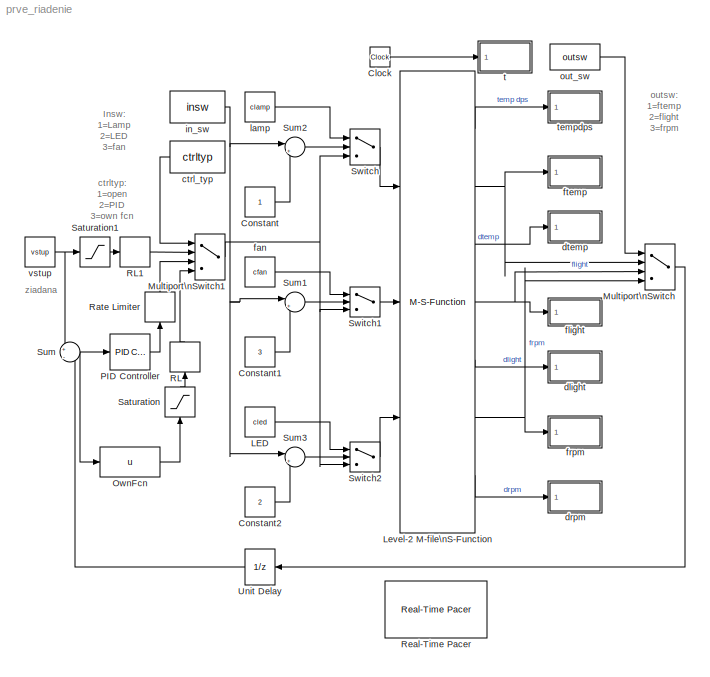
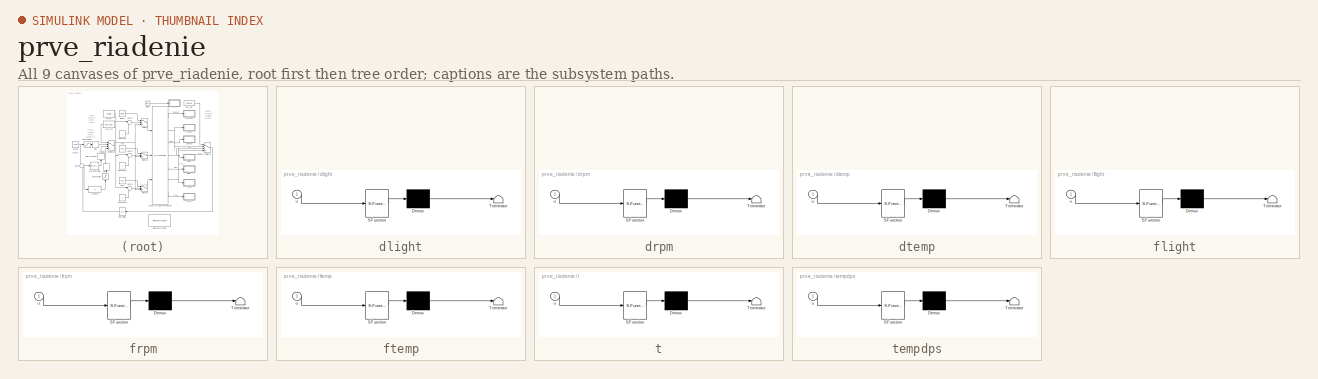
[diagram: thumbnail index - all 9 canvases of the model, root first then tree order]
MODEL prve_riadenie
KIND model
BLOCK [Clock] Clock
  Decimation = 10
  SID = 33
BLOCK [Constant] Constant
  OutDataType = fixdt(1, 16)
  OutScaling = 2^0
  SID = 80
  SampleTime = Ts
BLOCK [Constant] Constant1
  OutDataType = fixdt(1, 16)
  OutScaling = 2^0
  SID = 81
  SampleTime = Ts
  Value = 3
BLOCK [Constant] Constant2
  OutDataType = fixdt(1, 16)
  OutScaling = 2^0
  SID = 82
  SampleTime = Ts
  Value = 2
BLOCK [Constant] LED
  SID = 63
  SampleTime = Ts
  Value = cled
BLOCK [M-S-Function] Level-2 M-file\nS-Function
  FunctionName = tos10
  Parameters = Ts,com,baud,fTt,fTl,fTf
  Ports = [3, 7]
  SID = 45
BLOCK [MultiPortSwitch] Multiport\nSwitch
  InputSameDT = off
  OutDataType = fixdt(1, 16)
  OutDataTypeMode = double
  OutDataTypeStr = double
  OutScaling = 2^0
  Ports = [4, 1]
  SID = 71
  SampleTime = Ts
  SaturateOnIntegerOverflow = off
BLOCK [MultiPortSwitch] Multiport\nSwitch1
  InputSameDT = off
  OutDataType = fixdt(1, 16)
  OutDataTypeMode = double
  OutDataTypeStr = double
  OutScaling = 2^0
  Ports = [4, 1]
  SID = 115
  SampleTime = Ts
  SaturateOnIntegerOverflow = off
BLOCK [Fcn] OwnFcn
  Expr = u
  SID = 114
  SampleTime = Ts
BLOCK [Reference] PID Controller  REF=simulink/Continuous/PID Controller
  AntiWindupMode = clamping
  Controller = PID
  D = D
  DOutDataTypeStr = Inherit: Inherit via internal rule
  DOutMax = []
  DOutMin = []
  DParamDataTypeStr = Inherit: Inherit via internal rule
  DParamMax = []
  DParamMin = []
  DialogController = pidpack.PIDConfig.pidDDGCreate
  DialogControllerArgs = DataTag0
  ExternalReset = none
  FilterContinuousStateAttributes = ''
  FilterMethod = Forward Euler
  FilterOutDataTypeStr = Inherit: Inherit via internal rule
  FilterOutMax = []
  FilterOutMin = []
  FilterRTWStateStorageClass = Auto
  FilterStateMustResolveToSignalObject = off
  Form = Parallel
  FunctionWithSeparateData = off
  I = I
  IOutDataTypeStr = Inherit: Inherit via internal rule
  IOutMax = []
  IOutMin = []
  IParamDataTypeStr = Inherit: Inherit via internal rule
  IParamMax = []
  IParamMin = []
  IgnoreLimit = off
  InitialConditionForFilter = 0
  InitialConditionForIntegrator = 0
  InitialConditionSource = internal
  IntegratorContinuousStateAttributes = ''
  IntegratorMethod = Forward Euler
  IntegratorOutDataTypeStr = Inherit: Inherit via internal rule
  IntegratorOutMax = []
  IntegratorOutMin = []
  IntegratorRTWStateStorageClass = Auto
  IntegratorStateMustResolveToSignalObject = off
  Kb = 10
  KbOutDataTypeStr = Inherit: Inherit via internal rule
  KbOutMax = []
  KbOutMin = []
  KbParamDataTypeStr = Inherit: Inherit via internal rule
  KbParamMax = []
  KbParamMin = []
  Kt = 1
  KtOutDataTypeStr = Inherit: Inherit via internal rule
  KtOutMax = []
  KtOutMin = []
  KtParamDataTypeStr = Inherit: Inherit via internal rule
  KtParamMax = []
  KtParamMin = []
  LimitOutput = on
  LinearizeAsGain = off
  LockScale = off
  LowerSaturationLimit = 0
  N = 10
  NOutDataTypeStr = Inherit: Inherit via internal rule
  NOutMax = []
  NOutMin = []
  NParamDataTypeStr = Inherit: Inherit via internal rule
  NParamMax = []
  NParamMin = []
  P = P
  POutDataTypeStr = Inherit: Inherit via internal rule
  POutMax = []
  POutMin = []
  PParamDataTypeStr = Inherit: Inherit via internal rule
  PParamMax = []
  PParamMin = []
  Ports = [1, 1]
  RTWMemSecDataConstants = Inherit from model
  RTWMemSecDataInternal = Inherit from model
  RTWMemSecDataParameters = Inherit from model
  RTWMemSecFuncExecute = Inherit from model
  RTWMemSecFuncInitTerm = Inherit from model
  RndMeth = Floor
  SID = 99
  SampleTime = Ts
  SaturateOnIntegerOverflow = off
  SaturationOutDataTypeStr = Inherit: Same as input
  SaturationOutMax = []
  SaturationOutMin = []
  ShowPortLabels = FromPortIcon
  SourceBlock = simulink/Continuous/PID Controller
  SourceType = PID 1dof
  SumAccumDataTypeStr = Inherit: Inherit via internal rule
  SumDAccumDataTypeStr = Inherit: Inherit via internal rule
  SumDOutDataTypeStr = Inherit: Inherit via internal rule
  SumDOutMax = []
  SumDOutMin = []
  SumI1AccumDataTypeStr = Inherit: Inherit via internal rule
  SumI1OutDataTypeStr = single
  SumI1OutMax = []
  SumI1OutMin = []
  SumI2AccumDataTypeStr = Inherit: Inherit via internal rule
  SumI2OutDataTypeStr = Inherit: Inherit via internal rule
  SumI2OutMax = []
  SumI2OutMin = []
  SumI3AccumDataTypeStr = Inherit: Inherit via internal rule
  SumI3OutDataTypeStr = Inherit: Inherit via internal rule
  SumI3OutMax = []
  SumI3OutMin = []
  SumOutDataTypeStr = Inherit: Inherit via internal rule
  SumOutMax = []
  SumOutMin = []
  SystemSampleTime = -1
  TimeDomain = Discrete-time
  TrackingMode = off
  UpperSaturationLimit = 100
  ZeroCross = on
BLOCK [RateLimiter] RL
  FallingSlewLimit = -10
  RisingSlewLimit = 10
  SID = 116
  SampleTimeMode = inherited
BLOCK [RateLimiter] RL1
  FallingSlewLimit = -10
  RisingSlewLimit = 10
  SID = 119
  SampleTimeMode = inherited
BLOCK [RateLimiter] Rate Limiter
  FallingSlewLimit = -10
  RisingSlewLimit = 10
  SID = 113
  SampleTimeMode = inherited
BLOCK [Reference] Real-Time Pacer  REF=tos_lib/Real-Time Pacer  (lib defined in mdl_b48aa653034c, slx_2f9688d23522)
  Ports = []
  SID = 59
  SourceBlock = tos_lib/Real-Time Pacer
  SourceType = RealTime_Pacer
  simTimePerRealTime = 1
BLOCK [Saturate] Saturation
  LowerLimit = 0
  OutDataType = fixdt(1, 16)
  OutScaling = 2^0
  SID = 117
  SampleTime = Ts
  UpperLimit = 100
BLOCK [Saturate] Saturation1
  LowerLimit = 0
  OutDataType = fixdt(1, 16)
  OutScaling = 2^0
  SID = 118
  SampleTime = Ts
  UpperLimit = 100
BLOCK [Sum] Sum
  IconShape = round
  InputSameDT = off
  Inputs = +|-
  OutDataType = fixdt(1, 16)
  OutDataTypeMode = Inherit via internal rule
  OutDataTypeStr = Inherit: Inherit via internal rule
  OutScaling = 2^0
  Ports = [2, 1]
  SID = 87
  SampleTime = Ts
  SaturateOnIntegerOverflow = off
BLOCK [Sum] Sum1
  IconShape = round
  InputSameDT = off
  Inputs = |+-
  OutDataType = fixdt(1, 16)
  OutDataTypeMode = Inherit via internal rule
  OutDataTypeStr = Inherit: Inherit via internal rule
  OutScaling = 2^0
  Ports = [2, 1]
  SID = 77
  SampleTime = Ts
  SaturateOnIntegerOverflow = off
BLOCK [Sum] Sum2
  IconShape = round
  InputSameDT = off
  Inputs = |+-
  OutDataType = fixdt(1, 16)
  OutDataTypeMode = Inherit via internal rule
  OutDataTypeStr = Inherit: Inherit via internal rule
  OutScaling = 2^0
  Ports = [2, 1]
  SID = 78
  SampleTime = Ts
  SaturateOnIntegerOverflow = off
BLOCK [Sum] Sum3
  IconShape = round
  InputSameDT = off
  Inputs = |+-
  OutDataType = fixdt(1, 16)
  OutDataTypeMode = Inherit via internal rule
  OutDataTypeStr = Inherit: Inherit via internal rule
  OutScaling = 2^0
  Ports = [2, 1]
  SID = 76
  SampleTime = Ts
  SaturateOnIntegerOverflow = off
BLOCK [Switch] Switch
  Criteria = u2 ~= 0
  InputSameDT = off
  OutDataType = fixdt(1, 16)
  OutDataTypeMode = double
  OutDataTypeStr = double
  OutScaling = 2^0
  SID = 73
  SaturateOnIntegerOverflow = off
BLOCK [Switch] Switch1
  Criteria = u2 ~= 0
  InputSameDT = off
  OutDataType = fixdt(1, 16)
  OutDataTypeMode = double
  OutDataTypeStr = double
  OutScaling = 2^0
  SID = 74
  SaturateOnIntegerOverflow = off
BLOCK [Switch] Switch2
  Criteria = u2 ~= 0
  InputSameDT = off
  OutDataType = fixdt(1, 16)
  OutDataTypeMode = double
  OutDataTypeStr = double
  OutScaling = 2^0
  SID = 75
  SampleTime = Ts
  SaturateOnIntegerOverflow = off
BLOCK [UnitDelay] Unit Delay
  SID = 102
  SampleTime = Ts
BLOCK [Constant] ctrl_typ
  SID = 84
  SampleTime = Ts
  Value = ctrltyp
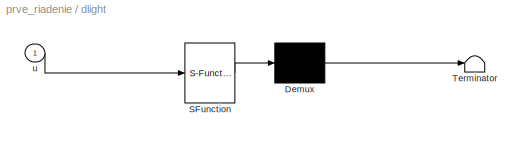
BLOCK [SubSystem] dlight
  FunctionWithSeparateData = off
  MaskDescription = Embedded MATLAB block
  MaskDisplay = disp('fcn');
  MaskHideContents = off
  MaskIconFrame = on
  MaskIconOpaque = off
  MaskIconRotate = none
  MaskIconUnits = autoscale
  MaskPortRotate = default
  MaskSelfModifiable = on
  MaskType = Stateflow
  MinAlgLoopOccurrences = off
  Opaque = off
  PermitHierarchicalResolution = ExplicitOnly
  Ports = [1]
  PropExecContextOutsideSubsystem = off
  RTWSystemCode = Auto
  RequestExecContextInheritance = off
  SID = 92
  SystemSampleTime = Ts
  TreatAsAtomicUnit = on
BLOCK [Demux] dlight/ Demux 
  Outputs = 1
  Ports = [1, 1]
  SID = 7
BLOCK [S-Function] dlight/ SFunction 
  EnableBusSupport = on
  FunctionName = sf_sfun
  PortCounts = [1 1]
  Ports = [1, 1]
  SID = 6
  Tag = Stateflow S-Function prve_riadenie 7
BLOCK [Terminator] dlight/ Terminator 
  SID = 9
BLOCK [Inport] dlight/u
  IconDisplay = Port number
  OutDataType = sfix(16)
  OutScaling = 2^0
  SID = 1
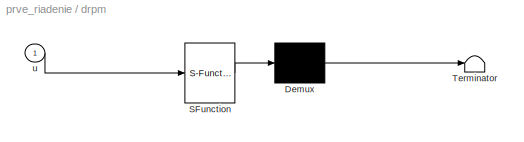
BLOCK [SubSystem] drpm
  FunctionWithSeparateData = off
  MaskDescription = Embedded MATLAB block
  MaskDisplay = disp('fcn');
  MaskHideContents = off
  MaskIconFrame = on
  MaskIconOpaque = off
  MaskIconRotate = none
  MaskIconUnits = autoscale
  MaskPortRotate = default
  MaskSelfModifiable = on
  MaskType = Stateflow
  MinAlgLoopOccurrences = off
  Opaque = off
  PermitHierarchicalResolution = ExplicitOnly
  Ports = [1]
  PropExecContextOutsideSubsystem = off
  RTWSystemCode = Auto
  RequestExecContextInheritance = off
  SID = 94
  SystemSampleTime = Ts
  TreatAsAtomicUnit = on
BLOCK [Demux] drpm/ Demux 
  Outputs = 1
  Ports = [1, 1]
  SID = 7
BLOCK [S-Function] drpm/ SFunction 
  EnableBusSupport = on
  FunctionName = sf_sfun
  PortCounts = [1 1]
  Ports = [1, 1]
  SID = 6
  Tag = Stateflow S-Function prve_riadenie 5
BLOCK [Terminator] drpm/ Terminator 
  SID = 9
BLOCK [Inport] drpm/u
  IconDisplay = Port number
  OutDataType = sfix(16)
  OutScaling = 2^0
  SID = 1
BLOCK [SubSystem] dtemp
  FunctionWithSeparateData = off
  MaskDescription = Embedded MATLAB block
  MaskDisplay = disp('fcn');
  MaskHideContents = off
  MaskIconFrame = on
  MaskIconOpaque = off
  MaskIconRotate = none
  MaskIconUnits = autoscale
  MaskPortRotate = default
  MaskSelfModifiable = on
  MaskType = Stateflow
  MinAlgLoopOccurrences = off
  Opaque = off
  PermitHierarchicalResolution = ExplicitOnly
  Ports = [1]
  PropExecContextOutsideSubsystem = off
  RTWSystemCode = Auto
  RequestExecContextInheritance = off
  SID = 90
  SystemSampleTime = Ts
  TreatAsAtomicUnit = on
BLOCK [Demux] dtemp/ Demux 
  Outputs = 1
  Ports = [1, 1]
  SID = 7
BLOCK [S-Function] dtemp/ SFunction 
  EnableBusSupport = on
  FunctionName = sf_sfun
  PortCounts = [1 1]
  Ports = [1, 1]
  SID = 6
  Tag = Stateflow S-Function prve_riadenie 3
BLOCK [Terminator] dtemp/ Terminator 
  SID = 9
BLOCK [Inport] dtemp/u
  IconDisplay = Port number
  OutDataType = sfix(16)
  OutScaling = 2^0
  SID = 1
BLOCK [Constant] fan
  SID = 62
  SampleTime = Ts
  Value = cfan
BLOCK [SubSystem] flight
  FunctionWithSeparateData = off
  MaskDescription = Embedded MATLAB block
  MaskDisplay = disp('fcn');
  MaskHideContents = off
  MaskIconFrame = on
  MaskIconOpaque = off
  MaskIconRotate = none
  MaskIconUnits = autoscale
  MaskPortRotate = default
  MaskSelfModifiable = on
  MaskType = Stateflow
  MinAlgLoopOccurrences = off
  Opaque = off
  PermitHierarchicalResolution = ExplicitOnly
  Ports = [1]
  PropExecContextOutsideSubsystem = off
  RTWSystemCode = Auto
  RequestExecContextInheritance = off
  SID = 91
  SystemSampleTime = Ts
  TreatAsAtomicUnit = on
BLOCK [Demux] flight/ Demux 
  Outputs = 1
  Ports = [1, 1]
  SID = 7
BLOCK [S-Function] flight/ SFunction 
  EnableBusSupport = on
  FunctionName = sf_sfun
  PortCounts = [1 1]
  Ports = [1, 1]
  SID = 6
  Tag = Stateflow S-Function prve_riadenie 6
BLOCK [Terminator] flight/ Terminator 
  SID = 9
BLOCK [Inport] flight/u
  IconDisplay = Port number
  OutDataType = sfix(16)
  OutScaling = 2^0
  SID = 1
BLOCK [SubSystem] frpm
  FunctionWithSeparateData = off
  MaskDescription = Embedded MATLAB block
  MaskDisplay = disp('fcn');
  MaskHideContents = off
  MaskIconFrame = on
  MaskIconOpaque = off
  MaskIconRotate = none
  MaskIconUnits = autoscale
  MaskPortRotate = default
  MaskSelfModifiable = on
  MaskType = Stateflow
  MinAlgLoopOccurrences = off
  Opaque = off
  PermitHierarchicalResolution = ExplicitOnly
  Ports = [1]
  PropExecContextOutsideSubsystem = off
  RTWSystemCode = Auto
  RequestExecContextInheritance = off
  SID = 93
  SystemSampleTime = Ts
  TreatAsAtomicUnit = on
BLOCK [Demux] frpm/ Demux 
  Outputs = 1
  Ports = [1, 1]
  SID = 7
BLOCK [S-Function] frpm/ SFunction 
  EnableBusSupport = on
  FunctionName = sf_sfun
  PortCounts = [1 1]
  Ports = [1, 1]
  SID = 6
  Tag = Stateflow S-Function prve_riadenie 4
BLOCK [Terminator] frpm/ Terminator 
  SID = 9
BLOCK [Inport] frpm/u
  IconDisplay = Port number
  OutDataType = sfix(16)
  OutScaling = 2^0
  SID = 1
BLOCK [SubSystem] ftemp
  FunctionWithSeparateData = off
  MaskDescription = Embedded MATLAB block
  MaskDisplay = disp('fcn');
  MaskHideContents = off
  MaskIconFrame = on
  MaskIconOpaque = off
  MaskIconRotate = none
  MaskIconUnits = autoscale
  MaskPortRotate = default
  MaskSelfModifiable = on
  MaskType = Stateflow
  MinAlgLoopOccurrences = off
  Opaque = off
  PermitHierarchicalResolution = ExplicitOnly
  Ports = [1]
  PropExecContextOutsideSubsystem = off
  RTWSystemCode = Auto
  RequestExecContextInheritance = off
  SID = 89
  SystemSampleTime = Ts
  TreatAsAtomicUnit = on
BLOCK [Demux] ftemp/ Demux 
  Outputs = 1
  Ports = [1, 1]
  SID = 7
BLOCK [S-Function] ftemp/ SFunction 
  EnableBusSupport = on
  FunctionName = sf_sfun
  PortCounts = [1 1]
  Ports = [1, 1]
  SID = 6
  Tag = Stateflow S-Function prve_riadenie 1
BLOCK [Terminator] ftemp/ Terminator 
  SID = 9
BLOCK [Inport] ftemp/u
  IconDisplay = Port number
  OutDataType = sfix(16)
  OutScaling = 2^0
  SID = 1
BLOCK [Constant] in_sw
  SID = 79
  SampleTime = Ts
  Value = insw
BLOCK [Constant] lamp
  SID = 98
  SampleTime = Ts
  Value = clamp
BLOCK [Constant] out_sw
  SID = 72
  SampleTime = Ts
  Value = outsw
BLOCK [SubSystem] t
  FunctionWithSeparateData = off
  MaskDescription = Embedded MATLAB block
  MaskDisplay = disp('fcn');
  MaskHideContents = off
  MaskIconFrame = on
  MaskIconOpaque = off
  MaskIconRotate = none
  MaskIconUnits = autoscale
  MaskPortRotate = default
  MaskSelfModifiable = on
  MaskType = Stateflow
  MinAlgLoopOccurrences = off
  Opaque = off
  PermitHierarchicalResolution = ExplicitOnly
  Ports = [1]
  PropExecContextOutsideSubsystem = off
  RTWSystemCode = Auto
  RequestExecContextInheritance = off
  SID = 95
  SystemSampleTime = Ts
  TreatAsAtomicUnit = on
BLOCK [Demux] t/ Demux 
  Outputs = 1
  Ports = [1, 1]
  SID = 7
BLOCK [S-Function] t/ SFunction 
  EnableBusSupport = on
  FunctionName = sf_sfun
  PortCounts = [1 1]
  Ports = [1, 1]
  SID = 6
  Tag = Stateflow S-Function prve_riadenie 8
BLOCK [Terminator] t/ Terminator 
  SID = 9
BLOCK [Inport] t/u
  IconDisplay = Port number
  OutDataType = sfix(16)
  OutScaling = 2^0
  SID = 1
BLOCK [SubSystem] tempdps
  FunctionWithSeparateData = off
  MaskDescription = Embedded MATLAB block
  MaskDisplay = disp('fcn');
  MaskHideContents = off
  MaskIconFrame = on
  MaskIconOpaque = off
  MaskIconRotate = none
  MaskIconUnits = autoscale
  MaskPortRotate = default
  MaskSelfModifiable = on
  MaskType = Stateflow
  MinAlgLoopOccurrences = off
  Opaque = off
  PermitHierarchicalResolution = ExplicitOnly
  Ports = [1]
  PropExecContextOutsideSubsystem = off
  RTWSystemCode = Auto
  RequestExecContextInheritance = off
  SID = 88
  SystemSampleTime = Ts
  TreatAsAtomicUnit = on
BLOCK [Demux] tempdps/ Demux 
  Outputs = 1
  Ports = [1, 1]
  SID = 7
BLOCK [S-Function] tempdps/ SFunction 
  EnableBusSupport = on
  FunctionName = sf_sfun
  PortCounts = [1 1]
  Ports = [1, 1]
  SID = 6
  Tag = Stateflow S-Function prve_riadenie 2
BLOCK [Terminator] tempdps/ Terminator 
  SID = 9
BLOCK [Inport] tempdps/u
  IconDisplay = Port number
  OutDataType = sfix(16)
  OutScaling = 2^0
  SID = 1
BLOCK [Constant] vstup
  SID = 85
  SampleTime = Ts
  Value = vstup
ANNOTATION (root): Insw:\n1=Lamp\n2=LED\n3=fan
ANNOTATION (root): ctrltyp:\n1=open\n2=PID\n3=own fcn
ANNOTATION (root): outsw:\n1=ftemp\n2=flight\n3=frpm
ANNOTATION (root): ziadana
LINE Clock:1 -> t:1
LINE Constant1:1 -> Sum1:2
LINE Constant2:1 -> Sum3:2
LINE Constant:1 -> Sum2:2
LINE LED:1 -> Switch2:1
LINE Level-2 M-file\nS-Function:1 -> tempdps:1
NET Level-2 M-file\nS-Function:2 -> Multiport\nSwitch:2, ftemp:1
LINE Level-2 M-file\nS-Function:3 -> dtemp:1
NET Level-2 M-file\nS-Function:4 -> Multiport\nSwitch:3, flight:1
LINE Level-2 M-file\nS-Function:5 -> dlight:1
NET Level-2 M-file\nS-Function:6 -> Multiport\nSwitch:4, frpm:1
LINE Level-2 M-file\nS-Function:7 -> drpm:1
NET Multiport\nSwitch1:1 -> Switch1:3, Switch2:3, Switch:3
LINE Multiport\nSwitch:1 -> Unit Delay:1
LINE OwnFcn:1 -> Saturation:1
LINE PID Controller:1 -> Rate Limiter:1
LINE RL1:1 -> Multiport\nSwitch1:2
LINE RL:1 -> Multiport\nSwitch1:4
LINE Rate Limiter:1 -> Multiport\nSwitch1:3
LINE Saturation1:1 -> RL1:1
LINE Saturation:1 -> RL:1
LINE Sum1:1 -> Switch1:2
LINE Sum2:1 -> Switch:2
LINE Sum3:1 -> Switch2:2
NET Sum:1 -> OwnFcn:1, PID Controller:1
LINE Switch1:1 -> Level-2 M-file\nS-Function:2
LINE Switch2:1 -> Level-2 M-file\nS-Function:3
LINE Switch:1 -> Level-2 M-file\nS-Function:1
LINE Unit Delay:1 -> Sum:2
LINE ctrl_typ:1 -> Multiport\nSwitch1:1
LINE dlight/ Demux :1 -> dlight/ Terminator :1
LINE dlight/ SFunction :1 -> dlight/ Demux :1
LINE dlight/u:1 -> dlight/ SFunction :1
LINE drpm/ Demux :1 -> drpm/ Terminator :1
LINE drpm/ SFunction :1 -> drpm/ Demux :1
LINE drpm/u:1 -> drpm/ SFunction :1
LINE dtemp/ Demux :1 -> dtemp/ Terminator :1
LINE dtemp/ SFunction :1 -> dtemp/ Demux :1
LINE dtemp/u:1 -> dtemp/ SFunction :1
LINE fan:1 -> Switch1:1
LINE flight/ Demux :1 -> flight/ Terminator :1
LINE flight/ SFunction :1 -> flight/ Demux :1
LINE flight/u:1 -> flight/ SFunction :1
LINE frpm/ Demux :1 -> frpm/ Terminator :1
LINE frpm/ SFunction :1 -> frpm/ Demux :1
LINE frpm/u:1 -> frpm/ SFunction :1
LINE ftemp/ Demux :1 -> ftemp/ Terminator :1
LINE ftemp/ SFunction :1 -> ftemp/ Demux :1
LINE ftemp/u:1 -> ftemp/ SFunction :1
NET in_sw:1 -> Sum1:1, Sum2:1, Sum3:1
LINE lamp:1 -> Switch:1
LINE out_sw:1 -> Multiport\nSwitch:1
LINE t/ Demux :1 -> t/ Terminator :1
LINE t/ SFunction :1 -> t/ Demux :1
LINE t/u:1 -> t/ SFunction :1
LINE tempdps/ Demux :1 -> tempdps/ Terminator :1
LINE tempdps/ SFunction :1 -> tempdps/ Demux :1
LINE tempdps/u:1 -> tempdps/ SFunction :1
NET vstup:1 -> Saturation1:1, Sum:1
note: NET lines group one-source signal fan-out (src -> all destinations, sorted); 1:1 wires keep LINE
CHART ftemp states=1 transitions=1
  STATE_LABEL 'eML_blk_kernel()'
CHART tempdps states=1 transitions=1
  STATE_LABEL 'eML_blk_kernel()'
CHART dtemp states=1 transitions=1
  STATE_LABEL 'eML_blk_kernel()'
CHART frpm states=1 transitions=1
  STATE_LABEL 'eML_blk_kernel()'
CHART drpm states=1 transitions=1
  STATE_LABEL 'eML_blk_kernel()'
CHART flight states=1 transitions=1
  STATE_LABEL 'eML_blk_kernel()'
CHART dlight states=1 transitions=1
  STATE_LABEL 'eML_blk_kernel()'
CHART t states=1 transitions=1
  STATE_LABEL 'eML_blk_kernel()'
